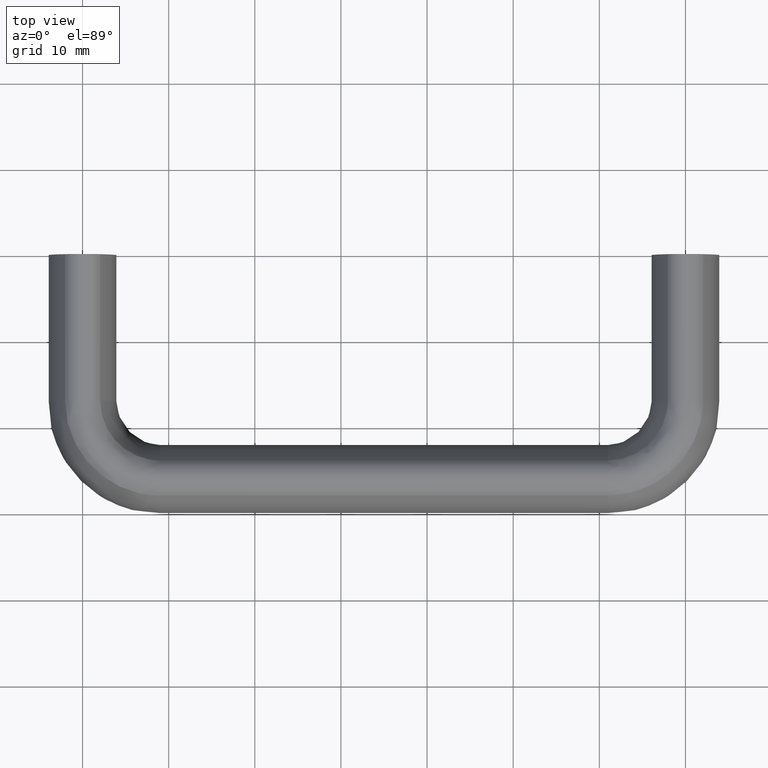
[diagram: clean part render]
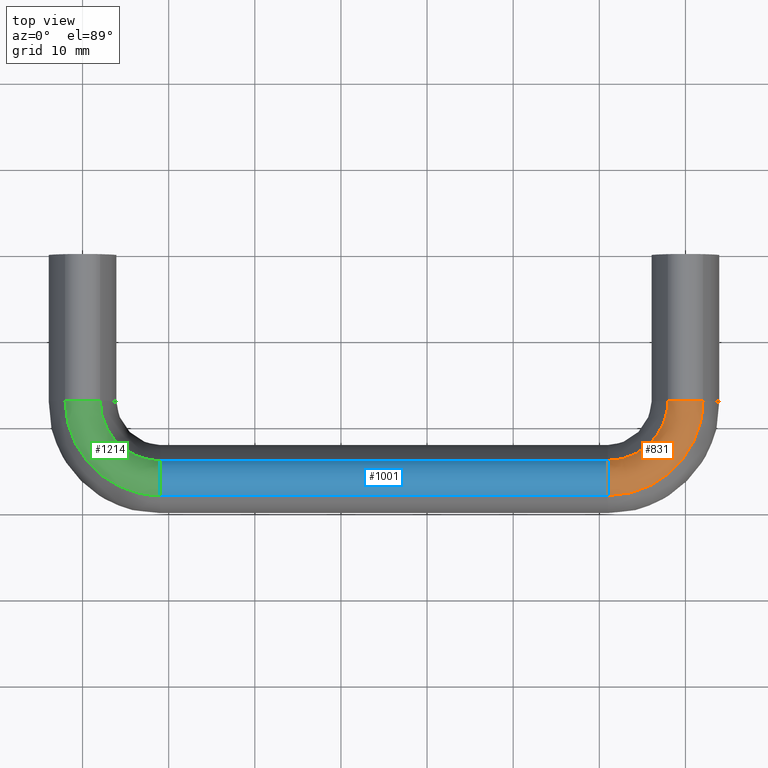
[diagram: same view with three faces highlighted in distinct colors, each labeled with its STEP entity id]
A machine part, top view with three faces highlighted in distinct colors.
Their STEP definitions:

[orange] entity #831 — the highlighted face is a freeform B-spline surface patch.
#512=CARTESIAN_POINT('',(67.962264150943412,-17.0,6.867924528301880));
#513=VERTEX_POINT('',#512);
#565=CARTESIAN_POINT('',(72.037735849056602,-17.0,6.867924528301880));
#566=VERTEX_POINT('',#565);
#567=CARTESIAN_POINT('',(72.037735849056602,-17.0,6.867924528301883));
#568=CARTESIAN_POINT('',(71.333333333333343,-16.999999999999996,8.0));
#569=CARTESIAN_POINT('',(70.0,-17.0,8.0));
#570=CARTESIAN_POINT('',(68.666666666666671,-16.999999999999996,8.0));
#571=CARTESIAN_POINT('',(67.962264150943412,-17.0,6.867924528301884));
#579=(BOUNDED_CURVE()B_SPLINE_CURVE(2,(#567,#568,#569,#570,#571),.UNSPECIFIED.,.F.,.U.)B_SPLINE_CURVE_WITH_KNOTS((3,2,3),(0.0,0.500000000000000,1.0),.UNSPECIFIED.)CURVE()GEOMETRIC_REPRESENTATION_ITEM()RATIONAL_B_SPLINE_CURVE((1.0,0.874157276121537,1.0,0.874157276121537,1.0))REPRESENTATION_ITEM(''));
#580=EDGE_CURVE('',#566,#513,#579,.T.);
#742=CARTESIAN_POINT('',(61.0,-23.962264150943401,6.867924528301880));
#743=VERTEX_POINT('',#742);
#757=CARTESIAN_POINT('',(61.0,-23.962264150943401,6.867924528301880));
#758=CARTESIAN_POINT('',(67.962264150943412,-23.962264150943405,6.867924528301881));
#759=CARTESIAN_POINT('',(67.962264150943412,-17.0,6.867924528301880));
#767=(BOUNDED_CURVE()B_SPLINE_CURVE(2,(#757,#758,#759),.UNSPECIFIED.,.F.,.U.)CURVE()GEOMETRIC_REPRESENTATION_ITEM()QUASI_UNIFORM_CURVE()RATIONAL_B_SPLINE_CURVE((1.0,0.707106781186548,1.0))REPRESENTATION_ITEM(''));
#768=EDGE_CURVE('',#743,#513,#767,.T.);
#774=CARTESIAN_POINT('',(60.224471362346563,-28.125726451810646,6.661029227923504));
#775=CARTESIAN_POINT('',(73.017473702996114,-29.017474035189920,6.661029227923503));
#776=CARTESIAN_POINT('',(72.125726473248235,-16.224471669890182,6.661029227923502));
#777=CARTESIAN_POINT('',(60.270362326300173,-27.467375119869260,7.999999999999997));
#778=CARTESIAN_POINT('',(72.306354311987704,-28.306354624524321,7.999999999999996));
#779=CARTESIAN_POINT('',(71.467375140038286,-16.270362615645283,7.999999999999997));
#780=CARTESIAN_POINT('',(60.374165605785940,-25.978214260698991,7.999999999999999));
#781=CARTESIAN_POINT('',(70.697834496034687,-26.697834764107728,7.999999999999998));
#782=CARTESIAN_POINT('',(69.978214277998646,-16.374165853966787,7.999999999999998));
#783=CARTESIAN_POINT('',(60.477968926298708,-24.489052812955123,7.999999999999999));
#784=CARTESIAN_POINT('',(69.089314044332852,-25.089314267942257,7.999999999999998));
#785=CARTESIAN_POINT('',(68.489052827385393,-16.477969133315320,7.999999999999999));
#786=CARTESIAN_POINT('',(60.523859875381817,-23.830701694345969,6.661028464748258));
#787=CARTESIAN_POINT('',(68.378194883755611,-24.378195087707844,6.661028464748256));
#788=CARTESIAN_POINT('',(67.830701707507714,-16.523860064199908,6.661028464748258));
#796=(BOUNDED_SURFACE()B_SPLINE_SURFACE(2,2,((#774,#777,#780,#783,#786),(#775,#778,#781,#784,#787),(#776,#779,#782,#785,#788)),.UNSPECIFIED.,.F.,.F.,.U.)B_SPLINE_SURFACE_WITH_KNOTS((3,3),(3,2,3),(0.0,20.324432583531411),(0.0,2.741788440108529,5.483577785528187),.UNSPECIFIED.)GEOMETRIC_REPRESENTATION_ITEM()RATIONAL_B_SPLINE_SURFACE(((0.889780948944189,0.767966631102088,0.919258316275454,0.767966581147086,0.889781029387958),(0.583896453720354,0.503958859771230,0.603240237457421,0.503958826989512,0.583896506509562),(0.889780937738490,0.767966621430491,0.919258304698524,0.767966571475490,0.889781018182258)))REPRESENTATION_ITEM('')SURFACE());
#797=ORIENTED_EDGE('',*,*,#768,.F.);
#798=CARTESIAN_POINT('',(61.0,-28.037735849056599,6.867924528301880));
#799=VERTEX_POINT('',#798);
#800=CARTESIAN_POINT('',(61.0,-28.037735849056599,6.867924528301883));
#801=CARTESIAN_POINT('',(61.0,-27.333333333333339,8.0));
#802=CARTESIAN_POINT('',(61.0,-26.0,8.0));
#803=CARTESIAN_POINT('',(61.0,-24.666666666666668,8.0));
#804=CARTESIAN_POINT('',(61.0,-23.962264150943390,6.867924528301884));
#812=(BOUNDED_CURVE()B_SPLINE_CURVE(2,(#800,#801,#802,#803,#804),.UNSPECIFIED.,.F.,.U.)B_SPLINE_CURVE_WITH_KNOTS((3,2,3),(0.0,0.500000000000000,1.0),.UNSPECIFIED.)CURVE()GEOMETRIC_REPRESENTATION_ITEM()RATIONAL_B_SPLINE_CURVE((1.0,0.874157276121537,1.0,0.874157276121537,1.0))REPRESENTATION_ITEM(''));
#813=EDGE_CURVE('',#799,#743,#812,.T.);
#814=ORIENTED_EDGE('',*,*,#813,.F.);
#815=CARTESIAN_POINT('',(61.0,-28.037735849056599,6.867924528301880));
#816=CARTESIAN_POINT('',(72.037735849056588,-28.037735849056588,6.867924528301881));
#817=CARTESIAN_POINT('',(72.037735849056588,-17.0,6.867924528301880));
#825=(BOUNDED_CURVE()B_SPLINE_CURVE(2,(#815,#816,#817),.UNSPECIFIED.,.F.,.U.)CURVE()GEOMETRIC_REPRESENTATION_ITEM()QUASI_UNIFORM_CURVE()RATIONAL_B_SPLINE_CURVE((1.0,0.707106781186548,1.0))REPRESENTATION_ITEM(''));
#826=EDGE_CURVE('',#799,#566,#825,.T.);
#827=ORIENTED_EDGE('',*,*,#826,.T.);
#828=ORIENTED_EDGE('',*,*,#580,.T.);
#829=EDGE_LOOP('',(#797,#814,#827,#828));
#830=FACE_OUTER_BOUND('',#829,.T.);
#831=ADVANCED_FACE('',(#830),#796,.T.);

[blue] entity #1001 — the highlighted face is a freeform B-spline surface patch.
#742=CARTESIAN_POINT('',(61.0,-23.962264150943401,6.867924528301880));
#743=VERTEX_POINT('',#742);
#798=CARTESIAN_POINT('',(61.0,-28.037735849056599,6.867924528301880));
#799=VERTEX_POINT('',#798);
#800=CARTESIAN_POINT('',(61.0,-28.037735849056599,6.867924528301883));
#801=CARTESIAN_POINT('',(61.0,-27.333333333333339,8.0));
#802=CARTESIAN_POINT('',(61.0,-26.0,8.0));
#803=CARTESIAN_POINT('',(61.0,-24.666666666666668,8.0));
#804=CARTESIAN_POINT('',(61.0,-23.962264150943390,6.867924528301884));
#812=(BOUNDED_CURVE()B_SPLINE_CURVE(2,(#800,#801,#802,#803,#804),.UNSPECIFIED.,.F.,.U.)B_SPLINE_CURVE_WITH_KNOTS((3,2,3),(0.0,0.500000000000000,1.0),.UNSPECIFIED.)CURVE()GEOMETRIC_REPRESENTATION_ITEM()RATIONAL_B_SPLINE_CURVE((1.0,0.874157276121537,1.0,0.874157276121537,1.0))REPRESENTATION_ITEM(''));
#813=EDGE_CURVE('',#799,#743,#812,.T.);
#937=CARTESIAN_POINT('',(9.0,-23.962264150943401,6.867924528301880));
#938=VERTEX_POINT('',#937);
#952=CARTESIAN_POINT('',(9.0,-23.962264150943401,6.867924528301880));
#953=CARTESIAN_POINT('',(61.0,-23.962264150943401,6.867924528301880));
#954=QUASI_UNIFORM_CURVE('',1,(#952,#953),.UNSPECIFIED.,.F.,.U.);
#955=EDGE_CURVE('',#938,#743,#954,.T.);
#961=CARTESIAN_POINT('',(7.699999999999997,-28.070227962710369,6.814148336247299));
#962=CARTESIAN_POINT('',(62.332500000000010,-28.070227962710359,6.814148336247299));
#963=CARTESIAN_POINT('',(7.700000000000003,-25.924228043562021,10.473263872596590));
#964=CARTESIAN_POINT('',(62.332500000000017,-25.924228043562003,10.473263872596576));
#965=CARTESIAN_POINT('',(7.700000000000001,-23.893025523427639,6.749199092878435));
#966=CARTESIAN_POINT('',(62.332500000000010,-23.893025523427632,6.749199092878421));
#974=(BOUNDED_SURFACE()B_SPLINE_SURFACE(1,2,((#961,#963,#965),(#962,#964,#966)),.UNSPECIFIED.,.F.,.F.,.U.)B_SPLINE_SURFACE_WITH_KNOTS((2,2),(3,3),(0.0,54.632500000000007),(0.0,5.598554528611007),.UNSPECIFIED.)GEOMETRIC_REPRESENTATION_ITEM()RATIONAL_B_SPLINE_SURFACE(((1.0,0.492423560103467,1.0),(1.0,0.492423560103467,1.0)))REPRESENTATION_ITEM('')SURFACE());
#975=ORIENTED_EDGE('',*,*,#955,.F.);
#976=CARTESIAN_POINT('',(9.0,-28.037735849056599,6.867924528301880));
#977=VERTEX_POINT('',#976);
#978=CARTESIAN_POINT('',(9.0,-28.037735849056599,6.867924528301883));
#979=CARTESIAN_POINT('',(9.0,-27.333333333333339,8.0));
#980=CARTESIAN_POINT('',(9.0,-26.0,8.0));
#981=CARTESIAN_POINT('',(9.0,-24.666666666666668,8.0));
#982=CARTESIAN_POINT('',(9.0,-23.962264150943390,6.867924528301884));
#990=(BOUNDED_CURVE()B_SPLINE_CURVE(2,(#978,#979,#980,#981,#982),.UNSPECIFIED.,.F.,.U.)B_SPLINE_CURVE_WITH_KNOTS((3,2,3),(0.0,0.500000000000000,1.0),.UNSPECIFIED.)CURVE()GEOMETRIC_REPRESENTATION_ITEM()RATIONAL_B_SPLINE_CURVE((1.0,0.874157276121537,1.0,0.874157276121537,1.0))REPRESENTATION_ITEM(''));
#991=EDGE_CURVE('',#977,#938,#990,.T.);
#992=ORIENTED_EDGE('',*,*,#991,.F.);
#993=CARTESIAN_POINT('',(9.0,-28.037735849056599,6.867924528301880));
#994=CARTESIAN_POINT('',(61.0,-28.037735849056599,6.867924528301880));
#995=QUASI_UNIFORM_CURVE('',1,(#993,#994),.UNSPECIFIED.,.F.,.U.);
#996=EDGE_CURVE('',#977,#799,#995,.T.);
#997=ORIENTED_EDGE('',*,*,#996,.T.);
#998=ORIENTED_EDGE('',*,*,#813,.T.);
#999=EDGE_LOOP('',(#975,#992,#997,#998));
#1000=FACE_OUTER_BOUND('',#999,.T.);
#1001=ADVANCED_FACE('',(#1000),#974,.T.);

[green] entity #1214 — the highlighted face is a freeform B-spline surface patch.
#937=CARTESIAN_POINT('',(9.0,-23.962264150943401,6.867924528301880));
#938=VERTEX_POINT('',#937);
#976=CARTESIAN_POINT('',(9.0,-28.037735849056599,6.867924528301880));
#977=VERTEX_POINT('',#976);
#978=CARTESIAN_POINT('',(9.0,-28.037735849056599,6.867924528301883));
#979=CARTESIAN_POINT('',(9.0,-27.333333333333339,8.0));
#980=CARTESIAN_POINT('',(9.0,-26.0,8.0));
#981=CARTESIAN_POINT('',(9.0,-24.666666666666668,8.0));
#982=CARTESIAN_POINT('',(9.0,-23.962264150943390,6.867924528301884));
#990=(BOUNDED_CURVE()B_SPLINE_CURVE(2,(#978,#979,#980,#981,#982),.UNSPECIFIED.,.F.,.U.)B_SPLINE_CURVE_WITH_KNOTS((3,2,3),(0.0,0.500000000000000,1.0),.UNSPECIFIED.)CURVE()GEOMETRIC_REPRESENTATION_ITEM()RATIONAL_B_SPLINE_CURVE((1.0,0.874157276121537,1.0,0.874157276121537,1.0))REPRESENTATION_ITEM(''));
#991=EDGE_CURVE('',#977,#938,#990,.T.);
#1125=CARTESIAN_POINT('',(2.037735849056605,-17.0,6.867924528301880));
#1126=VERTEX_POINT('',#1125);
#1140=CARTESIAN_POINT('',(2.037735849056609,-17.0,6.867924528301880));
#1141=CARTESIAN_POINT('',(2.037735849056609,-23.962264150943394,6.867924528301880));
#1142=CARTESIAN_POINT('',(9.0,-23.962264150943390,6.867924528301880));
#1150=(BOUNDED_CURVE()B_SPLINE_CURVE(2,(#1140,#1141,#1142),.UNSPECIFIED.,.F.,.U.)CURVE()GEOMETRIC_REPRESENTATION_ITEM()QUASI_UNIFORM_CURVE()RATIONAL_B_SPLINE_CURVE((1.0,0.707106781186547,1.0))REPRESENTATION_ITEM(''));
#1151=EDGE_CURVE('',#1126,#938,#1150,.T.);
#1157=CARTESIAN_POINT('',(-2.126015153817737,-16.228627261551573,6.661029650317127));
#1158=CARTESIAN_POINT('',(-3.012985917976351,-29.021988591473512,6.661029650317128));
#1159=CARTESIAN_POINT('',(9.779707364850699,-28.125434172642471,6.661029650317125));
#1160=CARTESIAN_POINT('',(-1.467646607920766,-16.274272314262348,7.999999999999999));
#1161=CARTESIAN_POINT('',(-2.302131945430303,-28.310601896566620,7.999999999999998));
#1162=CARTESIAN_POINT('',(9.733569120661292,-27.467100005606788,7.999999999999999));
#1163=CARTESIAN_POINT('',(0.021552595589204,-16.377519312565465,7.999999999999997));
#1164=CARTESIAN_POINT('',(-0.694213134112824,-26.701478091905503,7.999999999999997));
#1165=CARTESIAN_POINT('',(9.629206546041923,-25.977978565491121,7.999999999999998));
#1166=CARTESIAN_POINT('',(1.510751828528597,-16.480766312908941,7.999999999999999));
#1167=CARTESIAN_POINT('',(0.913705708980205,-25.092354255445041,8.0));
#1168=CARTESIAN_POINT('',(9.524843969360152,-24.488857095947559,7.999999999999999));
#1169=CARTESIAN_POINT('',(2.169120363758704,-16.526411364880182,6.661029612158391));
#1170=CARTESIAN_POINT('',(1.624559670009022,-24.380967572064009,6.661029612158389));
#1171=CARTESIAN_POINT('',(9.478705725918275,-23.830522939578177,6.661029612158388));
#1179=(BOUNDED_SURFACE()B_SPLINE_SURFACE(2,2,((#1157,#1160,#1163,#1166,#1169),(#1158,#1161,#1164,#1167,#1170),(#1159,#1162,#1165,#1168,#1171)),.UNSPECIFIED.,.F.,.F.,.U.)B_SPLINE_SURFACE_WITH_KNOTS((3,3),(3,2,3),(0.0,20.324271066941609),(0.0,2.741787916910459,5.483575879086454),.UNSPECIFIED.)GEOMETRIC_REPRESENTATION_ITEM()RATIONAL_B_SPLINE_SURFACE(((0.889090938620328,0.767371092940087,0.918545351842296,0.767371090444276,0.889090942639394),(0.580211146720983,0.500778089681367,0.599432778760143,0.500778088052628,0.580211149343782),(0.879268513940536,0.758893394614255,0.908397523153990,0.758893392146017,0.879268517915201)))REPRESENTATION_ITEM('')SURFACE());
#1180=ORIENTED_EDGE('',*,*,#1151,.F.);
#1181=CARTESIAN_POINT('',(-2.037735849056605,-17.0,6.867924528301880));
#1182=VERTEX_POINT('',#1181);
#1183=CARTESIAN_POINT('',(-2.037735849056606,-17.0,6.867924528301879));
#1184=CARTESIAN_POINT('',(-1.333333333333336,-17.000000000000004,8.000000000000002));
#1185=CARTESIAN_POINT('',(2.081831E-015,-17.0,8.0));
#1186=CARTESIAN_POINT('',(1.333333333333339,-17.000000000000004,8.000000000000002));
#1187=CARTESIAN_POINT('',(2.037735849056609,-17.0,6.867924528301883));
#1195=(BOUNDED_CURVE()B_SPLINE_CURVE(2,(#1183,#1184,#1185,#1186,#1187),.UNSPECIFIED.,.F.,.U.)B_SPLINE_CURVE_WITH_KNOTS((3,2,3),(0.0,0.500000000000000,1.0),.UNSPECIFIED.)CURVE()GEOMETRIC_REPRESENTATION_ITEM()RATIONAL_B_SPLINE_CURVE((1.0,0.874157276121537,1.0,0.874157276121537,1.0))REPRESENTATION_ITEM(''));
#1196=EDGE_CURVE('',#1182,#1126,#1195,.T.);
#1197=ORIENTED_EDGE('',*,*,#1196,.F.);
#1198=CARTESIAN_POINT('',(-2.037735849056600,-17.0,6.867924528301880));
#1199=CARTESIAN_POINT('',(-2.037735849056600,-28.037735849056588,6.867924528301881));
#1200=CARTESIAN_POINT('',(9.0,-28.037735849056599,6.867924528301880));
#1208=(BOUNDED_CURVE()B_SPLINE_CURVE(2,(#1198,#1199,#1200),.UNSPECIFIED.,.F.,.U.)CURVE()GEOMETRIC_REPRESENTATION_ITEM()QUASI_UNIFORM_CURVE()RATIONAL_B_SPLINE_CURVE((1.0,0.707106781186548,1.0))REPRESENTATION_ITEM(''));
#1209=EDGE_CURVE('',#1182,#977,#1208,.T.);
#1210=ORIENTED_EDGE('',*,*,#1209,.T.);
#1211=ORIENTED_EDGE('',*,*,#991,.T.);
#1212=EDGE_LOOP('',(#1180,#1197,#1210,#1211));
#1213=FACE_OUTER_BOUND('',#1212,.T.);
#1214=ADVANCED_FACE('',(#1213),#1179,.T.);